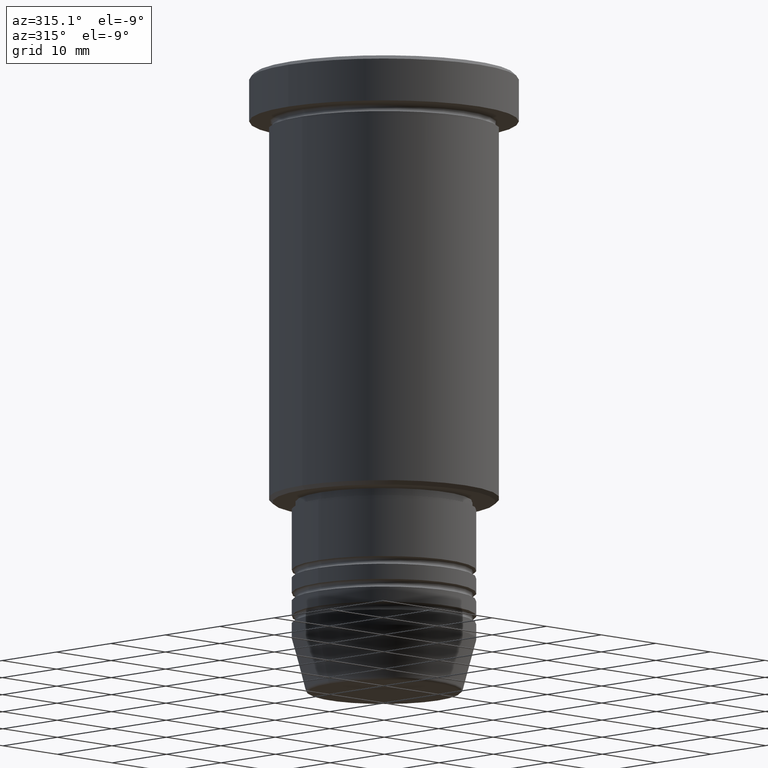
[diagram: clean part render]
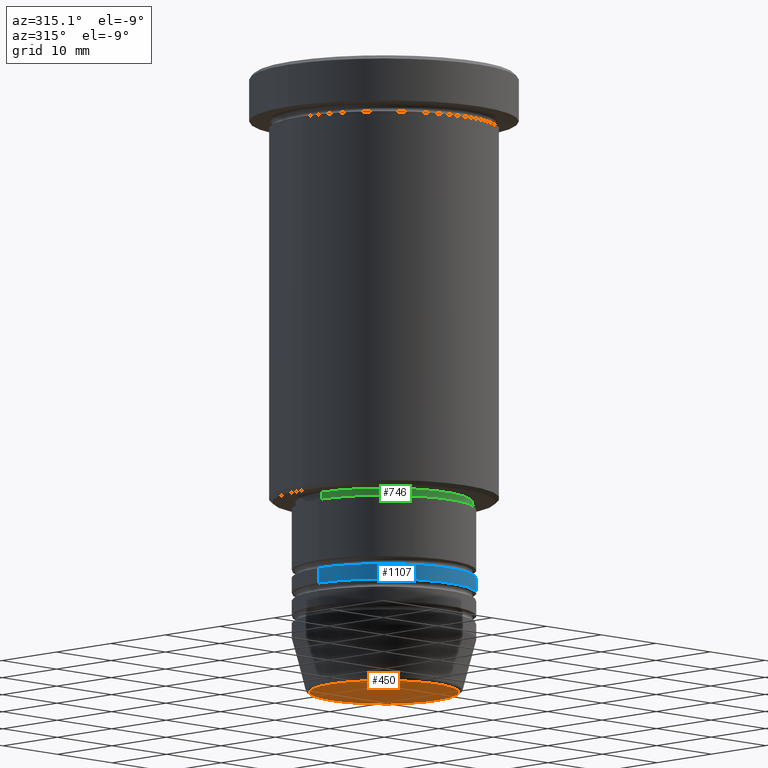
[diagram: same view with three faces highlighted in distinct colors, each labeled with its STEP entity id]
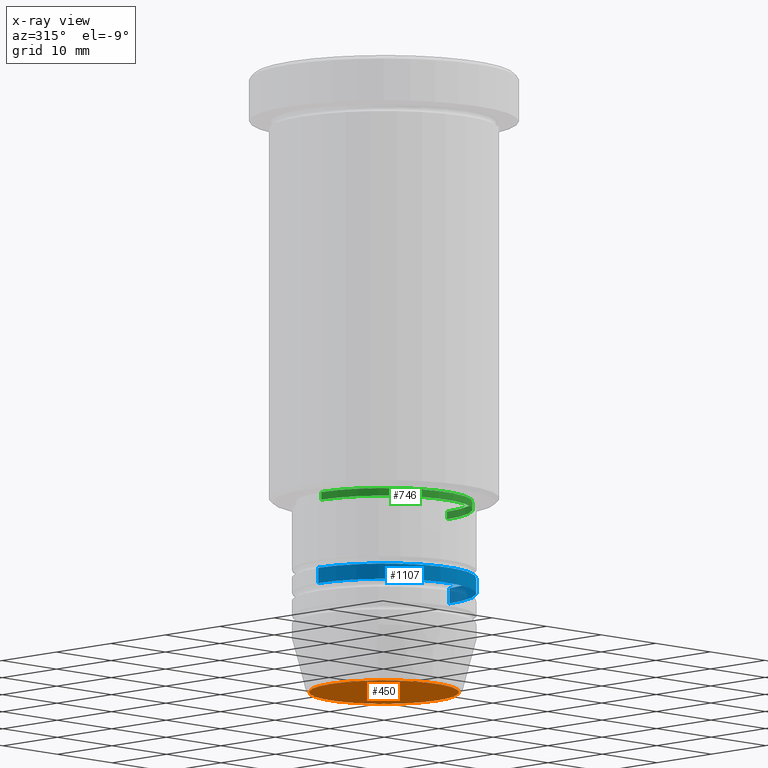
[diagram: x-ray of the same camera — body ghosted, the three highlighted faces saturated]
A machine part, auxiliary view with three faces highlighted in distinct colors.
The next image is the same camera in x-ray (body ghosted, the three faces saturated) — at least one of them is partly hidden behind the body in this view.
Their STEP definitions:

[orange] entity #450 — the highlighted planar face has unit normal (0, -0, 1).
#28 = FACE_OUTER_BOUND ( 'NONE', #734, .T. ) ;
#43 = CARTESIAN_POINT ( 'NONE',  ( 9.740692158992654726, 0.000000000000000000, -81.00000000000001421 ) ) ;
#53 = DIRECTION ( 'NONE',  ( 1.000000000000000000, 0.000000000000000000, 0.000000000000000000 ) ) ;
#90 = DIRECTION ( 'NONE',  ( 0.000000000000000000, 0.000000000000000000, -1.000000000000000000 ) ) ;
#213 = CARTESIAN_POINT ( 'NONE',  ( 0.000000000000000000, 0.000000000000000000, -81.00000000000001421 ) ) ;
#231 = CARTESIAN_POINT ( 'NONE',  ( 0.000000000000000000, 0.000000000000000000, -81.00000000000001421 ) ) ;
#264 = EDGE_CURVE ( 'NONE', #1125, #865, #606, .T. ) ;
#320 = AXIS2_PLACEMENT_3D ( 'NONE', #213, #500, #1130 ) ;
#402 = PLANE ( 'NONE',  #320 ) ;
#403 = CIRCLE ( 'NONE', #586, 9.740692158992654726 ) ;
#450 = ADVANCED_FACE ( 'NONE', ( #28 ), #402, .F. ) ;
#488 = CARTESIAN_POINT ( 'NONE',  ( -9.740692158992654726, 1.222463696683474210E-15, -81.00000000000001421 ) ) ;
#500 = DIRECTION ( 'NONE',  ( 0.000000000000000000, -0.000000000000000000, 1.000000000000000000 ) ) ;
#553 = ORIENTED_EDGE ( 'NONE', *, *, #572, .T. ) ;
#572 = EDGE_CURVE ( 'NONE', #865, #1125, #403, .T. ) ;
#586 = AXIS2_PLACEMENT_3D ( 'NONE', #231, #721, #53 ) ;
#606 = CIRCLE ( 'NONE', #1143, 9.740692158992654726 ) ;
#721 = DIRECTION ( 'NONE',  ( 0.000000000000000000, 0.000000000000000000, -1.000000000000000000 ) ) ;
#734 = EDGE_LOOP ( 'NONE', ( #754, #553 ) ) ;
#754 = ORIENTED_EDGE ( 'NONE', *, *, #264, .T. ) ;
#760 = DIRECTION ( 'NONE',  ( 1.000000000000000000, 0.000000000000000000, 0.000000000000000000 ) ) ;
#865 = VERTEX_POINT ( 'NONE', #488 ) ;
#995 = CARTESIAN_POINT ( 'NONE',  ( 0.000000000000000000, 0.000000000000000000, -81.00000000000001421 ) ) ;
#1125 = VERTEX_POINT ( 'NONE', #43 ) ;
#1130 = DIRECTION ( 'NONE',  ( 1.000000000000000000, 0.000000000000000000, 0.000000000000000000 ) ) ;
#1143 = AXIS2_PLACEMENT_3D ( 'NONE', #995, #90, #760 ) ;

[blue] entity #1107 — the highlighted cylindrical surface (partial cylindrical patch) has radius 12 mm, axis along (-0, -0, 1).
#2 = EDGE_CURVE ( 'NONE', #979, #455, #508, .T. ) ;
#16 = VERTEX_POINT ( 'NONE', #789 ) ;
#33 = DIRECTION ( 'NONE',  ( -0.000000000000000000, -0.000000000000000000, 1.000000000000000000 ) ) ;
#39 = CARTESIAN_POINT ( 'NONE',  ( 0.000000000000000000, 0.000000000000000000, -67.99999999999998579 ) ) ;
#68 = FACE_OUTER_BOUND ( 'NONE', #321, .T. ) ;
#116 = DIRECTION ( 'NONE',  ( 1.000000000000000000, 0.000000000000000000, 0.000000000000000000 ) ) ;
#151 = VECTOR ( 'NONE', #801, 1000.000000000000000 ) ;
#167 = AXIS2_PLACEMENT_3D ( 'NONE', #876, #406, #418 ) ;
#200 = CARTESIAN_POINT ( 'NONE',  ( 12.00000000000000000, 0.000000000000000000, -65.99999999999998579 ) ) ;
#226 = CARTESIAN_POINT ( 'NONE',  ( 0.000000000000000000, 0.000000000000000000, -65.99999999999998579 ) ) ;
#272 = ORIENTED_EDGE ( 'NONE', *, *, #494, .T. ) ;
#280 = ORIENTED_EDGE ( 'NONE', *, *, #2, .F. ) ;
#321 = EDGE_LOOP ( 'NONE', ( #833, #272, #1076, #280 ) ) ;
#332 = CARTESIAN_POINT ( 'NONE',  ( -12.00000000000000000, 1.469576158976823947E-15, 0.000000000000000000 ) ) ;
#384 = LINE ( 'NONE', #391, #853 ) ;
#391 = CARTESIAN_POINT ( 'NONE',  ( 12.00000000000000000, 0.000000000000000000, 0.000000000000000000 ) ) ;
#406 = DIRECTION ( 'NONE',  ( -0.000000000000000000, -0.000000000000000000, 1.000000000000000000 ) ) ;
#410 = EDGE_CURVE ( 'NONE', #620, #455, #384, .T. ) ;
#418 = DIRECTION ( 'NONE',  ( 1.000000000000000000, 0.000000000000000000, 0.000000000000000000 ) ) ;
#455 = VERTEX_POINT ( 'NONE', #200 ) ;
#492 = AXIS2_PLACEMENT_3D ( 'NONE', #226, #609, #515 ) ;
#494 = EDGE_CURVE ( 'NONE', #16, #620, #525, .T. ) ;
#508 = CIRCLE ( 'NONE', #492, 12.00000000000000000 ) ;
#515 = DIRECTION ( 'NONE',  ( 1.000000000000000000, 0.000000000000000000, 0.000000000000000000 ) ) ;
#525 = CIRCLE ( 'NONE', #797, 12.00000000000000000 ) ;
#609 = DIRECTION ( 'NONE',  ( -0.000000000000000000, -0.000000000000000000, 1.000000000000000000 ) ) ;
#620 = VERTEX_POINT ( 'NONE', #714 ) ;
#687 = DIRECTION ( 'NONE',  ( -0.000000000000000000, -0.000000000000000000, 1.000000000000000000 ) ) ;
#691 = CARTESIAN_POINT ( 'NONE',  ( -12.00000000000000000, 1.469576158976823947E-15, -65.99999999999998579 ) ) ;
#714 = CARTESIAN_POINT ( 'NONE',  ( 12.00000000000000000, 0.000000000000000000, -67.99999999999998579 ) ) ;
#716 = LINE ( 'NONE', #332, #151 ) ;
#789 = CARTESIAN_POINT ( 'NONE',  ( -12.00000000000000000, 1.469576158976823947E-15, -67.99999999999998579 ) ) ;
#797 = AXIS2_PLACEMENT_3D ( 'NONE', #39, #33, #116 ) ;
#801 = DIRECTION ( 'NONE',  ( -0.000000000000000000, -0.000000000000000000, 1.000000000000000000 ) ) ;
#833 = ORIENTED_EDGE ( 'NONE', *, *, #1061, .F. ) ;
#853 = VECTOR ( 'NONE', #687, 1000.000000000000000 ) ;
#876 = CARTESIAN_POINT ( 'NONE',  ( 0.000000000000000000, 0.000000000000000000, 0.000000000000000000 ) ) ;
#979 = VERTEX_POINT ( 'NONE', #691 ) ;
#1038 = CYLINDRICAL_SURFACE ( 'NONE', #167, 12.00000000000000000 ) ;
#1061 = EDGE_CURVE ( 'NONE', #16, #979, #716, .T. ) ;
#1076 = ORIENTED_EDGE ( 'NONE', *, *, #410, .T. ) ;
#1107 = ADVANCED_FACE ( 'NONE', ( #68 ), #1038, .T. ) ;

[green] entity #746 — the highlighted cylindrical surface (partial cylindrical patch) has radius 11.5 mm, axis along (-0, -0, 1).
#141 = CARTESIAN_POINT ( 'NONE',  ( 11.50000000000000000, 0.000000000000000000, -57.00000000000000711 ) ) ;
#330 = DIRECTION ( 'NONE',  ( -0.000000000000000000, -0.000000000000000000, 1.000000000000000000 ) ) ;
#347 = FACE_OUTER_BOUND ( 'NONE', #473, .T. ) ;
#364 = ORIENTED_EDGE ( 'NONE', *, *, #540, .F. ) ;
#382 = AXIS2_PLACEMENT_3D ( 'NONE', #739, #913, #747 ) ;
#447 = DIRECTION ( 'NONE',  ( -0.000000000000000000, -0.000000000000000000, 1.000000000000000000 ) ) ;
#456 = EDGE_CURVE ( 'NONE', #523, #530, #1042, .T. ) ;
#473 = EDGE_LOOP ( 'NONE', ( #364, #549, #561, #504 ) ) ;
#483 = DIRECTION ( 'NONE',  ( -0.000000000000000000, -0.000000000000000000, 1.000000000000000000 ) ) ;
#504 = ORIENTED_EDGE ( 'NONE', *, *, #711, .F. ) ;
#514 = CARTESIAN_POINT ( 'NONE',  ( -11.50000000000000000, 1.408343819019456176E-15, 0.000000000000000000 ) ) ;
#523 = VERTEX_POINT ( 'NONE', #676 ) ;
#530 = VERTEX_POINT ( 'NONE', #141 ) ;
#540 = EDGE_CURVE ( 'NONE', #523, #1150, #697, .T. ) ;
#549 = ORIENTED_EDGE ( 'NONE', *, *, #456, .T. ) ;
#561 = ORIENTED_EDGE ( 'NONE', *, *, #1091, .T. ) ;
#595 = CARTESIAN_POINT ( 'NONE',  ( 0.000000000000000000, 0.000000000000000000, -57.00000000000000711 ) ) ;
#634 = VECTOR ( 'NONE', #862, 1000.000000000000000 ) ;
#676 = CARTESIAN_POINT ( 'NONE',  ( -11.50000000000000000, 1.408343819019456176E-15, -57.00000000000000711 ) ) ;
#686 = VERTEX_POINT ( 'NONE', #796 ) ;
#697 = LINE ( 'NONE', #514, #1064 ) ;
#711 = EDGE_CURVE ( 'NONE', #1150, #686, #1104, .T. ) ;
#732 = CARTESIAN_POINT ( 'NONE',  ( -11.50000000000000000, 1.408343819019456176E-15, -56.00000000000000711 ) ) ;
#733 = CYLINDRICAL_SURFACE ( 'NONE', #382, 11.50000000000000000 ) ;
#739 = CARTESIAN_POINT ( 'NONE',  ( 0.000000000000000000, 0.000000000000000000, 0.000000000000000000 ) ) ;
#746 = ADVANCED_FACE ( 'NONE', ( #347 ), #733, .T. ) ;
#747 = DIRECTION ( 'NONE',  ( 1.000000000000000000, 0.000000000000000000, 0.000000000000000000 ) ) ;
#790 = LINE ( 'NONE', #1046, #634 ) ;
#796 = CARTESIAN_POINT ( 'NONE',  ( 11.50000000000000000, 0.000000000000000000, -56.00000000000000711 ) ) ;
#817 = DIRECTION ( 'NONE',  ( 1.000000000000000000, 0.000000000000000000, 0.000000000000000000 ) ) ;
#862 = DIRECTION ( 'NONE',  ( -0.000000000000000000, -0.000000000000000000, 1.000000000000000000 ) ) ;
#913 = DIRECTION ( 'NONE',  ( -0.000000000000000000, -0.000000000000000000, 1.000000000000000000 ) ) ;
#957 = CARTESIAN_POINT ( 'NONE',  ( 0.000000000000000000, 0.000000000000000000, -56.00000000000000711 ) ) ;
#961 = AXIS2_PLACEMENT_3D ( 'NONE', #595, #483, #1029 ) ;
#1029 = DIRECTION ( 'NONE',  ( 1.000000000000000000, 0.000000000000000000, 0.000000000000000000 ) ) ;
#1042 = CIRCLE ( 'NONE', #961, 11.50000000000000000 ) ;
#1046 = CARTESIAN_POINT ( 'NONE',  ( 11.50000000000000000, 0.000000000000000000, 0.000000000000000000 ) ) ;
#1064 = VECTOR ( 'NONE', #330, 1000.000000000000000 ) ;
#1091 = EDGE_CURVE ( 'NONE', #530, #686, #790, .T. ) ;
#1104 = CIRCLE ( 'NONE', #1169, 11.50000000000000000 ) ;
#1150 = VERTEX_POINT ( 'NONE', #732 ) ;
#1169 = AXIS2_PLACEMENT_3D ( 'NONE', #957, #447, #817 ) ;